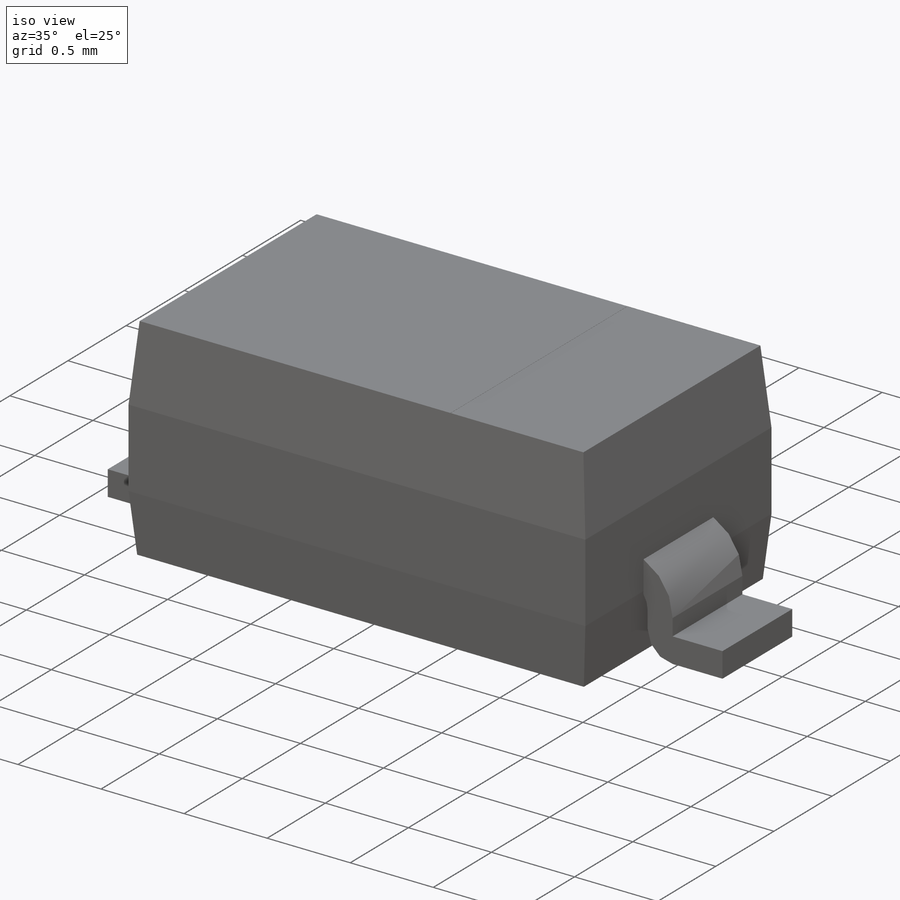
[diagram: iso view]
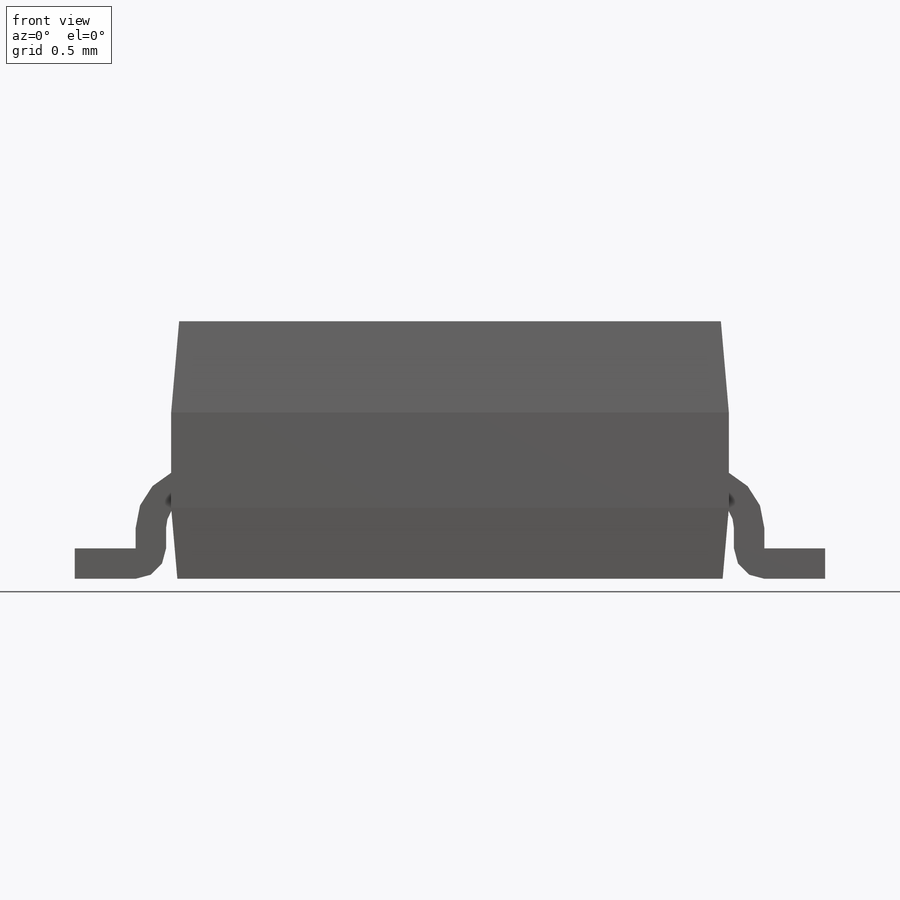
[diagram: front view]
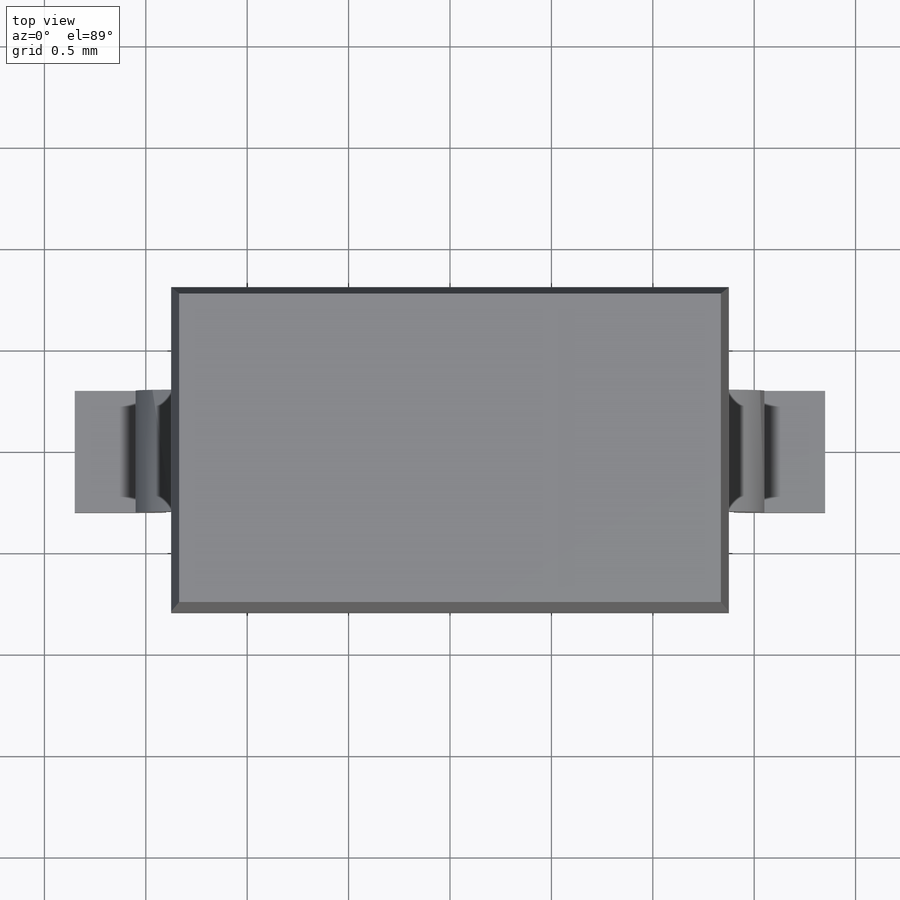
[diagram: top view]
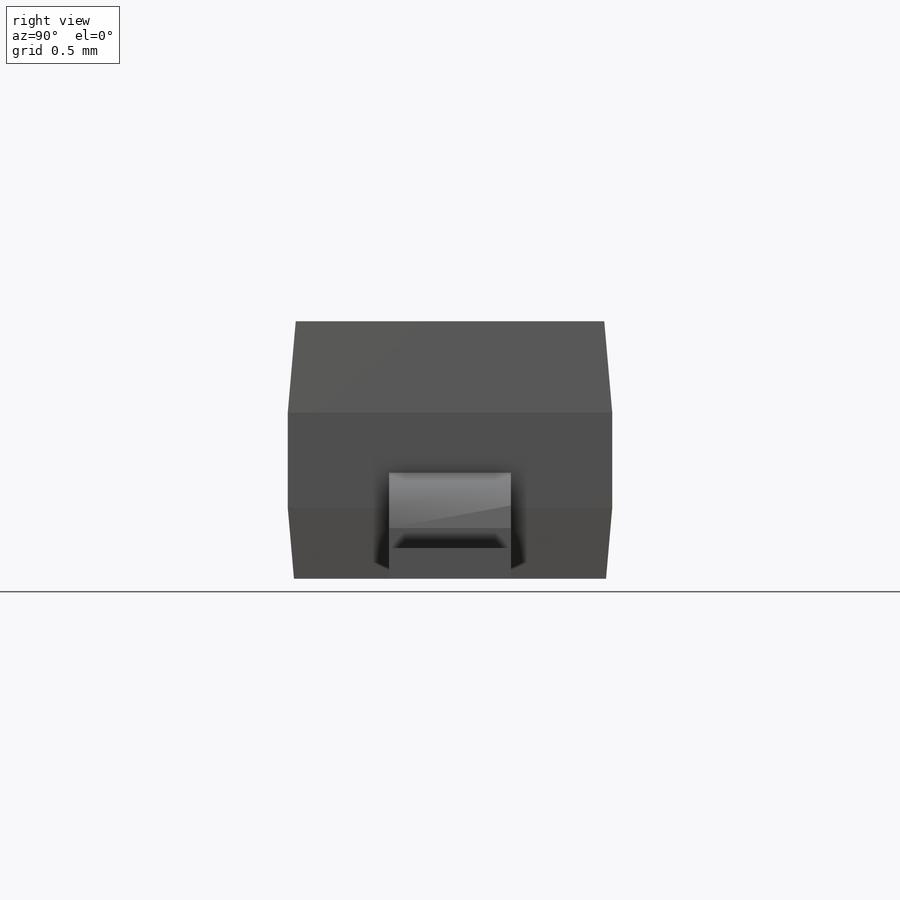
[diagram: right view]
SOLIDWORKS PART (.sldprt)
format: sldprt  version: not decoded by parser v0  size: 229,888 bytes
history: native  units: mm
features: sketch x4, chamfer x2, material x1, extrude x1, cut_extrude x1 (+12 scaffold rows collapsed)
feature tree (21):
  scaffold x12  (default folders/planes/origin — collapsed)
  material  "Material <not specified>"
  sketch  "Sketch1"  dims[D1=2.75mm D2=1.6mm]
  extrude  "Base-Extrude"  Depth=1.27mm
  chamfer  "Chamfer1"  Distance=0.45mm Angle=5deg
  chamfer  "Chamfer3"  Distance=0.35mm Angle=5deg
  sketch  "Sketch2"  dims[c1.D4=0.15mm c1.D1=0.4mm c1.D2=3.7mm c1.D3=2.8mm c2.D1=0.3mm c2.D2=0.3mm c2.D5=0.15mm c2.D6=1.0mm c2.D7=5.0mm]
  sketch  "Sketch3"  dims[D1=0.8mm]
  cut_extrude  "Cut-Extrude1"  Depth=0.001mm
  sketch  "Component_Outline"
decode coverage: 7 of 8 modeling features carry decoded parameters
note: suppression state not decoded; provenance and decode notes live in map.json
